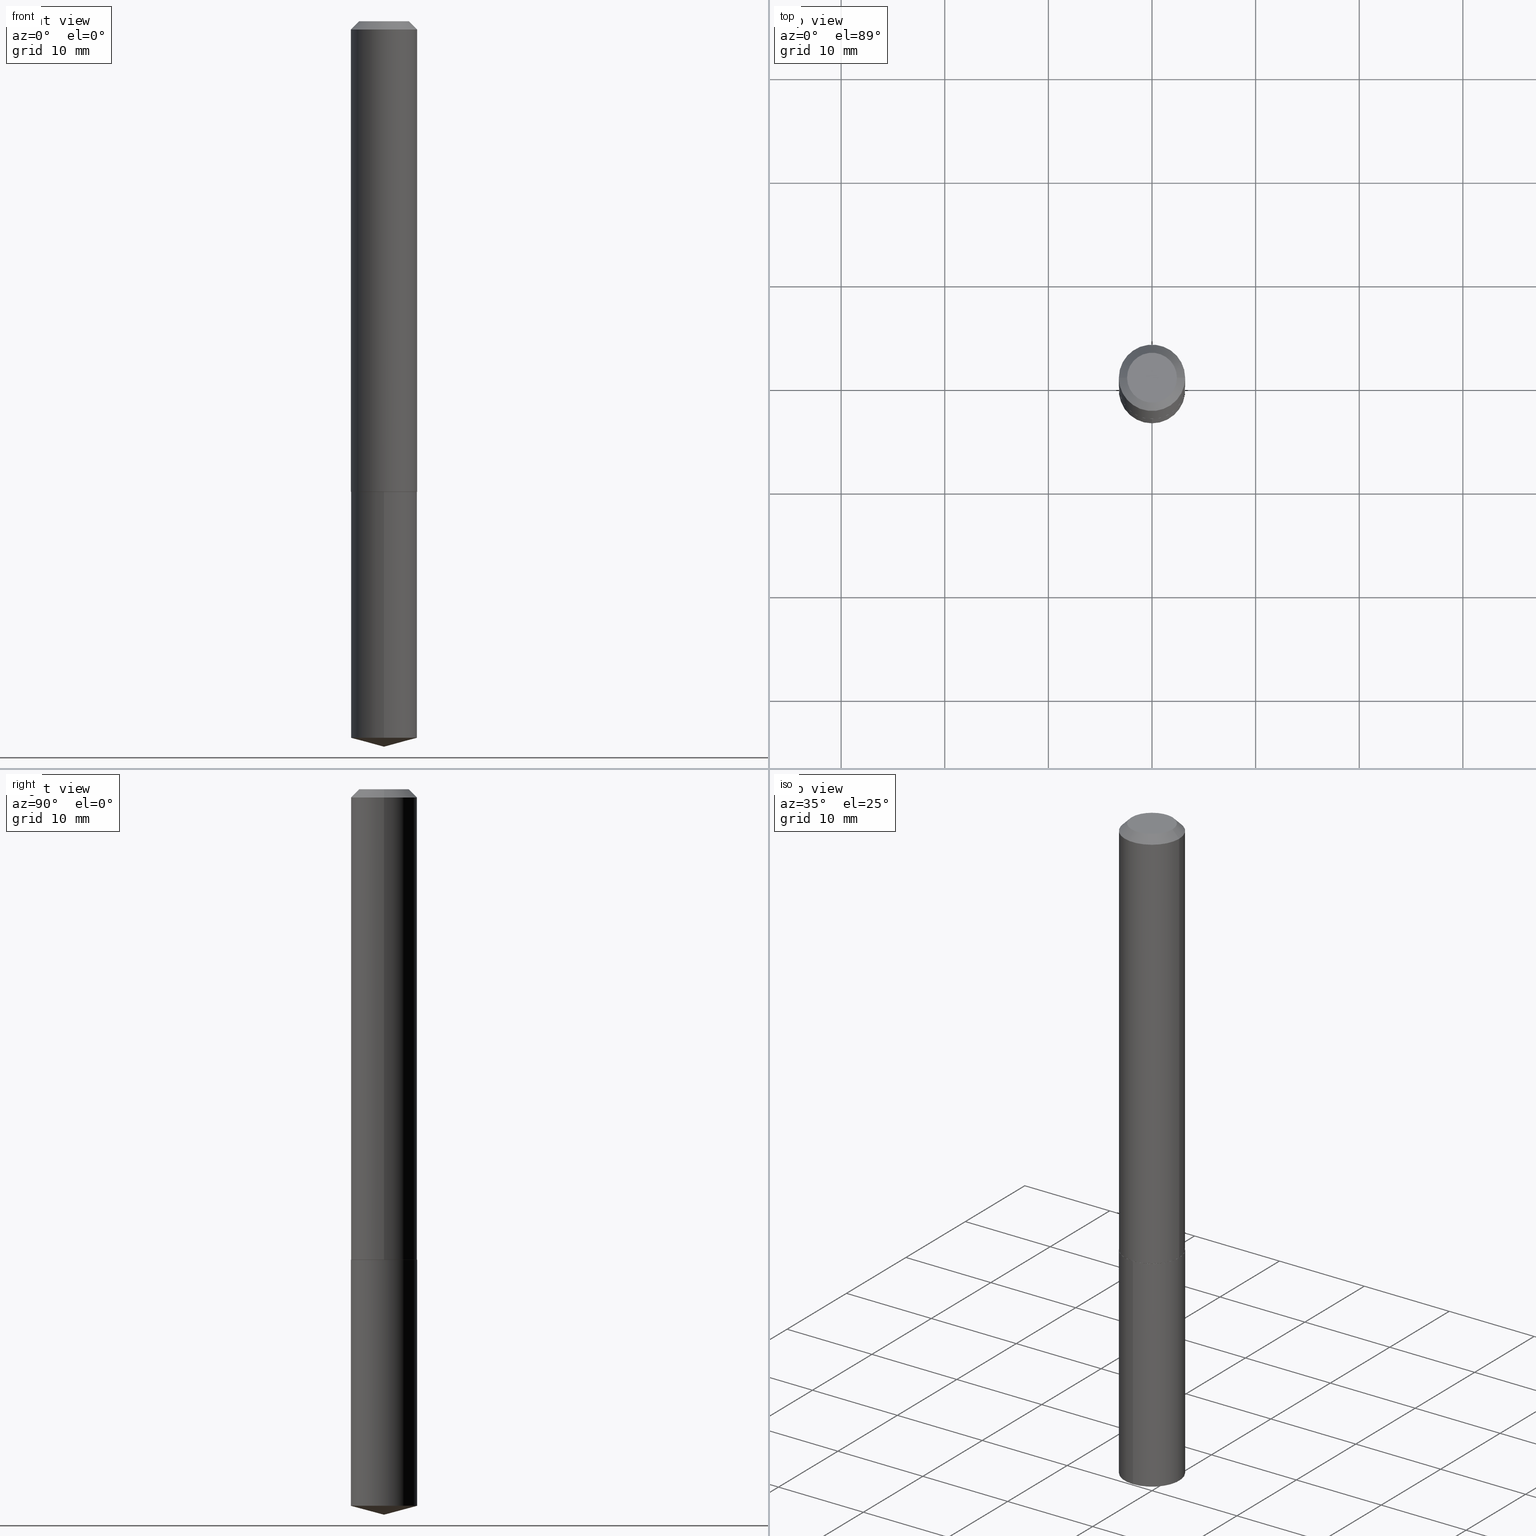
[diagram: canonical four-view strip — front | top / right | iso, engineering-drawing reading convention]
A machine part, canonical four-view strip (front | top / right | iso — engineering-drawing reading convention). The complete STEP part file that produces these views, byte-faithful:
ISO-10303-21;
HEADER;
FILE_DESCRIPTION (( 'STEP AP203' ),
    '1' );
FILE_NAME ('68999.STEP',
    '2024-04-23T14:11:52',
    ( '' ),
    ( '' ),
    'SwSTEP 2.0',
    'SolidWorks 2023',
    '' );
FILE_SCHEMA (( 'CONFIG_CONTROL_DESIGN' ));
ENDSEC;

DATA;
#1 = SECURITY_CLASSIFICATION ( '', '', #189 ) ;
#2 = FACE_OUTER_BOUND ( 'NONE', #12, .T. ) ;
#3 = DIRECTION ( 'NONE',  ( 2.445509556523787719E-29, -3.491422982038831617E-15, -1.000000000000000000 ) ) ;
#4 = CIRCLE ( 'NONE', #182, 0.1255000000000000560 ) ;
#5 = ORIENTED_EDGE ( 'NONE', *, *, #118, .F. ) ;
#6 = DIRECTION ( 'NONE',  ( -2.445468806185136597E-29, 3.491481338843145583E-15, 1.000000000000000000 ) ) ;
#7 = ORIENTED_EDGE ( 'NONE', *, *, #27, .T. ) ;
#8 = FACE_OUTER_BOUND ( 'NONE', #364, .T. ) ;
#9 = EDGE_LOOP ( 'NONE', ( #216, #271, #371, #341 ) ) ;
#10 = ADVANCED_FACE ( 'NONE', ( #75 ), #234, .T. ) ;
#11 = AXIS2_PLACEMENT_3D ( 'NONE', #91, #3, #60 ) ;
#12 = EDGE_LOOP ( 'NONE', ( #63, #339, #244 ) ) ;
#13 = PRODUCT_DEFINITION_FORMATION_WITH_SPECIFIED_SOURCE ( 'ANY', '', #270, .NOT_KNOWN. ) ;
#14 = DIRECTION ( 'NONE',  ( -6.982962677686266711E-15, -1.000000000000000000, 3.510303681827621500E-15 ) ) ;
#15 = VERTEX_POINT ( 'NONE', #126 ) ;
#16 = EDGE_LOOP ( 'NONE', ( #7, #333 ) ) ;
#17 = AXIS2_PLACEMENT_3D ( 'NONE', #45, #228, #263 ) ;
#18 = DIRECTION ( 'NONE',  ( -0.7071067811865452413, 2.468850131082233000E-15, -0.7071067811865497932 ) ) ;
#19 = SHAPE_DEFINITION_REPRESENTATION ( #334, #82 ) ;
#20 = ORIENTED_EDGE ( 'NONE', *, *, #297, .F. ) ;
#21 = CARTESIAN_POINT ( 'NONE',  ( 0.1260000000000001119, -8.798532973884703392E-16, 6.143982737502884452E-30 ) ) ;
#22 = AXIS2_PLACEMENT_3D ( 'NONE', #199, #195, #235 ) ;
#23 = DIRECTION ( 'NONE',  ( -1.000000000000000000, 6.982962677686265922E-15, -4.876176775795935793E-29 ) ) ;
#24 =( NAMED_UNIT ( * ) SI_UNIT ( $, .STERADIAN. ) SOLID_ANGLE_UNIT ( ) );
#25 = CARTESIAN_POINT ( 'NONE',  ( 4.371030944175312434E-29, -6.240673745048237082E-15, -1.787399999999999656 ) ) ;
#26 = VECTOR ( 'NONE', #259, 39.37007874015748143 ) ;
#27 = EDGE_CURVE ( 'NONE', #154, #366, #30, .T. ) ;
#28 = CC_DESIGN_PERSON_AND_ORGANIZATION_ASSIGNMENT ( #157, #160, ( #1 ) ) ;
#29 = EDGE_CURVE ( 'NONE', #95, #131, #353, .T. ) ;
#30 = CIRCLE ( 'NONE', #127, 0.09474999999999998701 ) ;
#31 = AXIS2_PLACEMENT_3D ( 'NONE', #139, #237, #264 ) ;
#32 = CARTESIAN_POINT ( 'NONE',  ( 0.000000000000000000, 0.000000000000000000, 0.000000000000000000 ) ) ;
#33 = ORIENTED_EDGE ( 'NONE', *, *, #183, .F. ) ;
#34 = CARTESIAN_POINT ( 'NONE',  ( 7.087934856449924707E-29, -2.349912706103619033E-15, -1.787399999999999878 ) ) ;
#35 = ORIENTED_EDGE ( 'NONE', *, *, #383, .F. ) ;
#36 = ORIENTED_EDGE ( 'NONE', *, *, #346, .T. ) ;
#37 = APPROVAL_PERSON_ORGANIZATION ( #311, #135, #224 ) ;
#38 = EDGE_CURVE ( 'NONE', #121, #368, #390, .T. ) ;
#39 = MANIFOLD_SOLID_BREP ( 'Body-Move/Copy2[2]', #376 ) ;
#40 = APPROVAL_STATUS ( 'not_yet_approved' ) ;
#41 = FACE_OUTER_BOUND ( 'NONE', #93, .T. ) ;
#42 = CALENDAR_DATE ( 2024, 23, 4 ) ;
#43 = DIRECTION ( 'NONE',  ( 1.000000000000000000, 0.000000000000000000, 0.000000000000000000 ) ) ;
#44 = ORIENTED_EDGE ( 'NONE', *, *, #243, .F. ) ;
#45 = CARTESIAN_POINT ( 'NONE',  ( 7.642090019328603538E-31, -1.091087918388490390E-16, -0.03125000000000021511 ) ) ;
#46 = CC_DESIGN_SECURITY_CLASSIFICATION ( #1, ( #13 ) ) ;
#47 = CARTESIAN_POINT ( 'NONE',  ( -0.1260000000000001952, -5.343644157321089338E-15, -1.786900000000000377 ) ) ;
#48 = DATE_TIME_ROLE ( 'creation_date' ) ;
#49 = CC_DESIGN_PERSON_AND_ORGANIZATION_ASSIGNMENT ( #379, #74, ( #13 ) ) ;
#50 = CARTESIAN_POINT ( 'NONE',  ( 7.642090019328603538E-31, -1.091087918388490390E-16, -0.03125000000000021511 ) ) ;
#51 = DIRECTION ( 'NONE',  ( -6.745023994389839133E-15, -0.9659258262890676461, 0.2588190451025227934 ) ) ;
#52 = FACE_OUTER_BOUND ( 'NONE', #208, .T. ) ;
#53 = VECTOR ( 'NONE', #51, 39.37007874015748854 ) ;
#54 = APPROVAL ( #40, 'UNSPECIFIED' ) ;
#55 = ADVANCED_FACE ( 'NONE', ( #229 ), #162, .T. ) ;
#56 = LOCAL_TIME ( 10, 11, 52.00000000000000000, #138 ) ;
#57 = CARTESIAN_POINT ( 'NONE',  ( -8.798532973884258671E-16, -0.1260000000000062459, -1.787399999999999656 ) ) ;
#58 = LENGTH_MEASURE_WITH_UNIT ( LENGTH_MEASURE( 0.02539999999999999897 ), #136 );
#59 = CIRCLE ( 'NONE', #17, 0.1260000000000000009 ) ;
#60 = DIRECTION ( 'NONE',  ( 6.982962677686265922E-15, 1.000000000000000000, -3.491422982038831617E-15 ) ) ;
#61 = ORIENTED_EDGE ( 'NONE', *, *, #77, .F. ) ;
#62 = DESIGN_CONTEXT ( 'detailed design', #255, 'design' ) ;
#63 = ORIENTED_EDGE ( 'NONE', *, *, #94, .F. ) ;
#64 = PERSON_AND_ORGANIZATION ( #272, #178 ) ;
#65 = ORIENTED_EDGE ( 'NONE', *, *, #27, .F. ) ;
#66 = CARTESIAN_POINT ( 'NONE',  ( 4.369808209772221314E-29, -6.238928004378817156E-15, -1.786900000000000377 ) ) ;
#67 = VERTEX_POINT ( 'NONE', #378 ) ;
#68 = CARTESIAN_POINT ( 'NONE',  ( -8.798532973884258671E-16, -0.1260000000000062459, -1.787399999999999656 ) ) ;
#69 = ORIENTED_EDGE ( 'NONE', *, *, #100, .F. ) ;
#70 = CALENDAR_DATE ( 2024, 23, 4 ) ;
#71 = DIRECTION ( 'NONE',  ( -6.982962677686265922E-15, -1.000000000000000000, 4.336266656609941617E-15 ) ) ;
#72 = ADVANCED_FACE ( 'NONE', ( #41 ), #352, .T. ) ;
#73 = DIRECTION ( 'NONE',  ( -2.445468806185136597E-29, 3.491481338843145583E-15, 1.000000000000000000 ) ) ;
#74 = PERSON_AND_ORGANIZATION_ROLE ( 'design_supplier' ) ;
#75 = FACE_OUTER_BOUND ( 'NONE', #123, .T. ) ;
#76 = CARTESIAN_POINT ( 'NONE',  ( 0.000000000000000000, 0.000000000000000000, 0.000000000000000000 ) ) ;
#77 = EDGE_CURVE ( 'NONE', #95, #365, #4, .T. ) ;
#78 = CARTESIAN_POINT ( 'NONE',  ( 0.1260000000000001952, -7.118781301767288876E-15, -1.786900000000000377 ) ) ;
#79 = CONICAL_SURFACE ( 'NONE', #367, 146.9311341562558084, 1.308996938995748538 ) ;
#80 = AXIS2_PLACEMENT_3D ( 'NONE', #76, #319, #192 ) ;
#81 = CARTESIAN_POINT ( 'NONE',  ( -2.994835545909349753E-48, 4.275831445897006817E-34, 1.224646799147362773E-19 ) ) ;
#82 = ADVANCED_BREP_SHAPE_REPRESENTATION ( '68999', ( #163, #39, #104 ), #90 ) ;
#83 = LINE ( 'NONE', #347, #161 ) ;
#84 = DIRECTION ( 'NONE',  ( -2.445468806185136877E-29, 3.491481338843145188E-15, 1.000000000000000000 ) ) ;
#85 = AXIS2_PLACEMENT_3D ( 'NONE', #268, #209, #372 ) ;
#86 = DIRECTION ( 'NONE',  ( -2.445509556523788279E-29, 3.491422982038831222E-15, 1.000000000000000000 ) ) ;
#87 = DIRECTION ( 'NONE',  ( -1.000000000000000000, 6.982962677686265922E-15, 0.000000000000000000 ) ) ;
#88 = EDGE_CURVE ( 'NONE', #144, #357, #300, .T. ) ;
#89 = CIRCLE ( 'NONE', #325, 0.1260000000000000009 ) ;
#90 =( GEOMETRIC_REPRESENTATION_CONTEXT ( 3 ) GLOBAL_UNCERTAINTY_ASSIGNED_CONTEXT ( ( #313 ) ) GLOBAL_UNIT_ASSIGNED_CONTEXT ( ( #172, #200, #24 ) ) REPRESENTATION_CONTEXT ( 'NONE', 'WORKASPACE' ) );
#91 = CARTESIAN_POINT ( 'NONE',  ( 4.371030944175314115E-29, -6.240673745048238660E-15, -1.787400000000000100 ) ) ;
#92 = EDGE_CURVE ( 'NONE', #154, #67, #83, .T. ) ;
#93 = EDGE_LOOP ( 'NONE', ( #35, #385, #101, #69 ) ) ;
#94 = EDGE_CURVE ( 'NONE', #121, #213, #320, .T. ) ;
#95 = VERTEX_POINT ( 'NONE', #316 ) ;
#96 = AXIS2_PLACEMENT_3D ( 'NONE', #167, #261, #87 ) ;
#97 = DIRECTION ( 'NONE',  ( -6.982962677686265922E-15, -1.000000000000000000, 4.336266656609941617E-15 ) ) ;
#98 = ORIENTED_EDGE ( 'NONE', *, *, #230, .F. ) ;
#99 = CALENDAR_DATE ( 2024, 23, 4 ) ;
#100 = EDGE_CURVE ( 'NONE', #67, #108, #59, .T. ) ;
#101 = ORIENTED_EDGE ( 'NONE', *, *, #118, .T. ) ;
#102 = LINE ( 'NONE', #47, #231 ) ;
#103 = COORDINATED_UNIVERSAL_TIME_OFFSET ( 5, 0, .BEHIND. ) ;
#104 = AXIS2_PLACEMENT_3D ( 'NONE', #370, #219, #43 ) ;
#105 = PERSON_AND_ORGANIZATION ( #272, #178 ) ;
#106 = DIRECTION ( 'NONE',  ( -2.445468806185136597E-29, 3.491481338843145583E-15, 1.000000000000000000 ) ) ;
#107 = CARTESIAN_POINT ( 'NONE',  ( 8.952838470577930965E-16, 0.1259999999999937559, -1.787400000000000766 ) ) ;
#108 = VERTEX_POINT ( 'NONE', #165 ) ;
#109 = DIRECTION ( 'NONE',  ( -2.445468806185136597E-29, 3.491481338843145583E-15, 1.000000000000000000 ) ) ;
#110 = CARTESIAN_POINT ( 'NONE',  ( 4.369808209772221314E-29, -6.238928004378817156E-15, -1.786900000000000377 ) ) ;
#111 = EDGE_LOOP ( 'NONE', ( #184, #148, #286, #119 ) ) ;
#112 = DIRECTION ( 'NONE',  ( -2.445509556523788279E-29, 3.491422982038831222E-15, 1.000000000000000000 ) ) ;
#113 = DIRECTION ( 'NONE',  ( -2.445468806185136597E-29, 3.491481338843145583E-15, 1.000000000000000000 ) ) ;
#114 = AXIS2_PLACEMENT_3D ( 'NONE', #34, #212, #142 ) ;
#115 = CARTESIAN_POINT ( 'NONE',  ( -8.954039685048053852E-28, 1.278354808149113839E-13, 36.61417874015747742 ) ) ;
#116 = CC_DESIGN_PERSON_AND_ORGANIZATION_ASSIGNMENT ( #125, #251, ( #145 ) ) ;
#117 = AXIS2_PLACEMENT_3D ( 'NONE', #343, #156, #14 ) ;
#118 = EDGE_CURVE ( 'NONE', #131, #108, #159, .T. ) ;
#119 = ORIENTED_EDGE ( 'NONE', *, *, #92, .F. ) ;
#120 = ORIENTED_EDGE ( 'NONE', *, *, #94, .T. ) ;
#121 = VERTEX_POINT ( 'NONE', #203 ) ;
#122 = PERSON_AND_ORGANIZATION ( #272, #178 ) ;
#123 = EDGE_LOOP ( 'NONE', ( #20, #331, #306, #351 ) ) ;
#124 = CARTESIAN_POINT ( 'NONE',  ( 6.739581064215659459E-29, -9.622012596200812609E-15, -2.755900000000000016 ) ) ;
#125 = PERSON_AND_ORGANIZATION ( #272, #178 ) ;
#126 = CARTESIAN_POINT ( 'NONE',  ( -0.1260000000000001952, -5.343644157321089338E-15, -1.786900000000000377 ) ) ;
#127 = AXIS2_PLACEMENT_3D ( 'NONE', #345, #106, #227 ) ;
#128 = EDGE_CURVE ( 'NONE', #213, #368, #89, .T. ) ;
#129 = AXIS2_PLACEMENT_3D ( 'NONE', #249, #369, #217 ) ;
#130 = MECHANICAL_CONTEXT ( 'NONE', #324, 'mechanical' ) ;
#131 = VERTEX_POINT ( 'NONE', #170 ) ;
#132 = LOCAL_TIME ( 10, 11, 52.00000000000000000, #373 ) ;
#133 = FACE_OUTER_BOUND ( 'NONE', #381, .T. ) ;
#134 = APPROVAL_DATE_TIME ( #279, #135 ) ;
#135 = APPROVAL ( #335, 'UNSPECIFIED' ) ;
#136 =( LENGTH_UNIT ( ) NAMED_UNIT ( * ) SI_UNIT ( $, .METRE. ) );
#137 = AXIS2_PLACEMENT_3D ( 'NONE', #25, #293, #387 ) ;
#138 = COORDINATED_UNIVERSAL_TIME_OFFSET ( 5, 0, .BEHIND. ) ;
#139 = CARTESIAN_POINT ( 'NONE',  ( 4.369808209772221314E-29, -6.238928004378817156E-15, -1.786900000000000377 ) ) ;
#140 = VECTOR ( 'NONE', #204, 39.37007874015748143 ) ;
#141 = CC_DESIGN_APPROVAL ( #135, ( #13 ) ) ;
#142 = DIRECTION ( 'NONE',  ( 1.000000000000000000, -6.982962677686265922E-15, 4.876176775795935793E-29 ) ) ;
#143 = VECTOR ( 'NONE', #327, 39.37007874015748143 ) ;
#144 = VERTEX_POINT ( 'NONE', #107 ) ;
#145 = PRODUCT_DEFINITION ( 'UNKNOWN', '', #13, #62 ) ;
#146 = DIRECTION ( 'NONE',  ( -2.445509556523788279E-29, 3.491422982038831617E-15, 1.000000000000000000 ) ) ;
#147 = FACE_OUTER_BOUND ( 'NONE', #111, .T. ) ;
#148 = ORIENTED_EDGE ( 'NONE', *, *, #230, .T. ) ;
#149 = PRODUCT_RELATED_PRODUCT_CATEGORY ( 'detail', '', ( #270 ) ) ;
#150 = CIRCLE ( 'NONE', #137, 0.1255000000000000560 ) ;
#151 = CARTESIAN_POINT ( 'NONE',  ( -0.1255000000000000560, -5.346293384495200539E-15, -1.787399999999999656 ) ) ;
#152 = CALENDAR_DATE ( 2024, 23, 4 ) ;
#153 = DATE_AND_TIME ( #42, #56 ) ;
#154 = VERTEX_POINT ( 'NONE', #355 ) ;
#155 = EDGE_CURVE ( 'NONE', #213, #357, #173, .T. ) ;
#156 = DIRECTION ( 'NONE',  ( -2.445509556523788279E-29, 3.491422982038831222E-15, 1.000000000000000000 ) ) ;
#157 = PERSON_AND_ORGANIZATION ( #272, #178 ) ;
#158 = EDGE_LOOP ( 'NONE', ( #61, #44 ) ) ;
#159 = LINE ( 'NONE', #21, #269 ) ;
#160 = PERSON_AND_ORGANIZATION_ROLE ( 'classification_officer' ) ;
#161 = VECTOR ( 'NONE', #18, 39.37007874015748143 ) ;
#162 = CYLINDRICAL_SURFACE ( 'NONE', #238, 0.1260000000000000009 ) ;
#163 = MANIFOLD_SOLID_BREP ( 'Body-Move/Copy2[1]', #181 ) ;
#164 = DIRECTION ( 'NONE',  ( -2.445468806185136597E-29, 3.491481338843145583E-15, 1.000000000000000000 ) ) ;
#165 = CARTESIAN_POINT ( 'NONE',  ( 0.1260000000000000009, -9.889620892273186510E-16, -0.03125000000000021511 ) ) ;
#166 = ADVANCED_FACE ( 'NONE', ( #265 ), #287, .F. ) ;
#167 = CARTESIAN_POINT ( 'NONE',  ( 7.642090019328603538E-31, -1.091087918388490390E-16, -0.03125000000000021511 ) ) ;
#168 = VECTOR ( 'NONE', #146, 39.37007874015748143 ) ;
#169 = LOCAL_TIME ( 10, 11, 52.00000000000000000, #314 ) ;
#170 = CARTESIAN_POINT ( 'NONE',  ( 0.1260000000000001952, -7.118781301767288876E-15, -1.786900000000000377 ) ) ;
#171 = DIMENSIONAL_EXPONENTS ( 1.000000000000000000, 0.000000000000000000, 0.000000000000000000, 0.000000000000000000, 0.000000000000000000, 0.000000000000000000, 0.000000000000000000 ) ;
#172 =( CONVERSION_BASED_UNIT ( 'INCH', #58 ) LENGTH_UNIT ( ) NAMED_UNIT ( #171 ) );
#173 = LINE ( 'NONE', #57, #143 ) ;
#174 = DIRECTION ( 'NONE',  ( -6.982962677686265922E-15, -1.000000000000000000, 4.336266656609941617E-15 ) ) ;
#175 = EDGE_CURVE ( 'NONE', #108, #67, #308, .T. ) ;
#176 = FACE_OUTER_BOUND ( 'NONE', #186, .T. ) ;
#177 = CIRCLE ( 'NONE', #222, 0.1260000000000000009 ) ;
#178 = ORGANIZATION ( 'UNSPECIFIED', 'UNSPECIFIED', '' ) ;
#179 = DIRECTION ( 'NONE',  ( 1.000000000000000000, -6.982962677686266711E-15, 4.876176775795935793E-29 ) ) ;
#180 = ORIENTED_EDGE ( 'NONE', *, *, #328, .F. ) ;
#181 = CLOSED_SHELL ( 'NONE', ( #55, #274, #348, #10, #296 ) ) ;
#182 = AXIS2_PLACEMENT_3D ( 'NONE', #382, #109, #356 ) ;
#183 = EDGE_CURVE ( 'NONE', #357, #144, #354, .T. ) ;
#184 = ORIENTED_EDGE ( 'NONE', *, *, #375, .F. ) ;
#185 = LINE ( 'NONE', #241, #168 ) ;
#186 = EDGE_LOOP ( 'NONE', ( #250, #242 ) ) ;
#187 = APPROVAL_STATUS ( 'not_yet_approved' ) ;
#188 = APPROVAL_PERSON_ORGANIZATION ( #318, #54, #278 ) ;
#189 = SECURITY_CLASSIFICATION_LEVEL ( 'unclassified' ) ;
#190 = ORIENTED_EDGE ( 'NONE', *, *, #267, .T. ) ;
#191 = CC_DESIGN_DATE_AND_TIME_ASSIGNMENT ( #153, #48, ( #145 ) ) ;
#192 = DIRECTION ( 'NONE',  ( 1.000000000000000000, -6.982962677686266711E-15, 4.876176775795935793E-29 ) ) ;
#193 = CARTESIAN_POINT ( 'NONE',  ( 0.09474999999999998701, -8.117818624234574270E-16, 2.449293598346239839E-19 ) ) ;
#194 = APPROVAL_DATE_TIME ( #225, #226 ) ;
#195 = DIRECTION ( 'NONE',  ( -2.445509556523788279E-29, 3.491422982038831222E-15, 1.000000000000000000 ) ) ;
#196 = CONICAL_SURFACE ( 'NONE', #85, 0.1260000000000000009, 0.7853981633974450594 ) ;
#197 = DIRECTION ( 'NONE',  ( -6.982962677686265922E-15, -1.000000000000000000, 4.336266656609941617E-15 ) ) ;
#198 = CC_DESIGN_PERSON_AND_ORGANIZATION_ASSIGNMENT ( #105, #340, ( #13 ) ) ;
#199 = CARTESIAN_POINT ( 'NONE',  ( 4.371030944175314115E-29, -6.240673745048238660E-15, -1.787400000000000100 ) ) ;
#200 =( NAMED_UNIT ( * ) PLANE_ANGLE_UNIT ( ) SI_UNIT ( $, .RADIAN. ) );
#201 = DIRECTION ( 'NONE',  ( 1.000000000000000000, -6.982962677686268288E-15, 0.000000000000000000 ) ) ;
#202 = CARTESIAN_POINT ( 'NONE',  ( 4.371030944175314115E-29, -6.240673745048238660E-15, -1.787400000000000100 ) ) ;
#203 = CARTESIAN_POINT ( 'NONE',  ( 6.739579786823907686E-29, -9.622012596200815764E-15, -2.755900000000000016 ) ) ;
#204 = DIRECTION ( 'NONE',  ( -2.445468806185136877E-29, 3.491481338843145188E-15, 1.000000000000000000 ) ) ;
#205 = CONICAL_SURFACE ( 'NONE', #253, 0.1260000000000001952, 0.7853981633982337618 ) ;
#206 = CARTESIAN_POINT ( 'NONE',  ( 0.1260000000000000009, -9.735315395580621580E-16, -0.03125000000000021511 ) ) ;
#207 = CIRCLE ( 'NONE', #275, 0.1260000000000001952 ) ;
#208 = EDGE_LOOP ( 'NONE', ( #98, #65, #299, #273 ) ) ;
#209 = DIRECTION ( 'NONE',  ( 2.445468806185136597E-29, -3.491481338843145583E-15, -1.000000000000000000 ) ) ;
#210 = ORIENTED_EDGE ( 'NONE', *, *, #297, .T. ) ;
#211 = CONICAL_SURFACE ( 'NONE', #96, 0.1260000000000000009, 0.7853981633974450594 ) ;
#212 = DIRECTION ( 'NONE',  ( -2.438088387897960049E-29, 3.491481338843145188E-15, 1.000000000000000000 ) ) ;
#213 = VERTEX_POINT ( 'NONE', #384 ) ;
#214 = DATE_TIME_ROLE ( 'classification_date' ) ;
#215 = APPLICATION_PROTOCOL_DEFINITION ( 'international standard', 'config_control_design', 1994, #324 ) ;
#216 = ORIENTED_EDGE ( 'NONE', *, *, #346, .F. ) ;
#217 = DIRECTION ( 'NONE',  ( 1.000000000000000000, -6.982962677686266711E-15, 4.876169288824004424E-29 ) ) ;
#218 = EDGE_CURVE ( 'NONE', #15, #131, #207, .T. ) ;
#219 = DIRECTION ( 'NONE',  ( 0.000000000000000000, 0.000000000000000000, 1.000000000000000000 ) ) ;
#220 = EDGE_LOOP ( 'NONE', ( #248, #36, #303, #285 ) ) ;
#221 = ADVANCED_FACE ( 'NONE', ( #52 ), #211, .T. ) ;
#222 = AXIS2_PLACEMENT_3D ( 'NONE', #245, #338, #97 ) ;
#223 = DIRECTION ( 'NONE',  ( -0.7071067811871027953, 7.493145998872359445E-15, 0.7071067811859920171 ) ) ;
#224 = APPROVAL_ROLE ( '' ) ;
#225 = DATE_AND_TIME ( #152, #276 ) ;
#226 = APPROVAL ( #187, 'UNSPECIFIED' ) ;
#227 = DIRECTION ( 'NONE',  ( 1.000000000000000000, -6.982962677686266711E-15, 4.876169288824004424E-29 ) ) ;
#228 = DIRECTION ( 'NONE',  ( -2.445468806185136597E-29, 3.491481338843145583E-15, 1.000000000000000000 ) ) ;
#229 = FACE_OUTER_BOUND ( 'NONE', #312, .T. ) ;
#230 = EDGE_CURVE ( 'NONE', #366, #108, #291, .T. ) ;
#231 = VECTOR ( 'NONE', #223, 39.37007874015748854 ) ;
#232 = ORIENTED_EDGE ( 'NONE', *, *, #155, .F. ) ;
#233 = DIRECTION ( 'NONE',  ( -2.445468806185136597E-29, 3.491481338843145583E-15, 1.000000000000000000 ) ) ;
#234 = CYLINDRICAL_SURFACE ( 'NONE', #252, 0.1260000000000000009 ) ;
#235 = DIRECTION ( 'NONE',  ( -6.982962677686265922E-15, -1.000000000000000000, 4.336266656609941617E-15 ) ) ;
#236 = FACE_OUTER_BOUND ( 'NONE', #220, .T. ) ;
#237 = DIRECTION ( 'NONE',  ( -2.445468806185136597E-29, 3.491481338843145583E-15, 1.000000000000000000 ) ) ;
#238 = AXIS2_PLACEMENT_3D ( 'NONE', #388, #112, #197 ) ;
#239 = DIRECTION ( 'NONE',  ( -6.982962677686266711E-15, -1.000000000000000000, 3.510303681827621500E-15 ) ) ;
#240 = AXIS2_PLACEMENT_3D ( 'NONE', #81, #290, #23 ) ;
#241 = CARTESIAN_POINT ( 'NONE',  ( 8.952838470577698251E-16, 0.1259999999999937559, -1.787400000000000766 ) ) ;
#242 = ORIENTED_EDGE ( 'NONE', *, *, #88, .T. ) ;
#243 = EDGE_CURVE ( 'NONE', #365, #95, #150, .T. ) ;
#244 = ORIENTED_EDGE ( 'NONE', *, *, #128, .F. ) ;
#245 = CARTESIAN_POINT ( 'NONE',  ( 6.656942638513705697E-29, -9.504240883125278205E-15, -2.722138401753678494 ) ) ;
#246 = ORIENTED_EDGE ( 'NONE', *, *, #128, .T. ) ;
#247 = AXIS2_PLACEMENT_3D ( 'NONE', #326, #329, #174 ) ;
#248 = ORIENTED_EDGE ( 'NONE', *, *, #77, .T. ) ;
#249 = CARTESIAN_POINT ( 'NONE',  ( -5.989671091818699506E-48, 8.551662891794013634E-34, 2.449293598294725547E-19 ) ) ;
#250 = ORIENTED_EDGE ( 'NONE', *, *, #183, .T. ) ;
#251 = PERSON_AND_ORGANIZATION_ROLE ( 'creator' ) ;
#252 = AXIS2_PLACEMENT_3D ( 'NONE', #202, #322, #380 ) ;
#253 = AXIS2_PLACEMENT_3D ( 'NONE', #66, #73, #304 ) ;
#254 = LOCAL_TIME ( 10, 11, 52.00000000000000000, #344 ) ;
#255 = APPLICATION_CONTEXT ( 'configuration controlled 3d designs of mechanical parts and assemblies' ) ;
#256 = APPLICATION_PROTOCOL_DEFINITION ( 'international standard', 'config_control_design', 1994, #255 ) ;
#257 = CC_DESIGN_DATE_AND_TIME_ASSIGNMENT ( #350, #214, ( #1 ) ) ;
#258 = ADVANCED_FACE ( 'NONE', ( #236 ), #317, .T. ) ;
#259 = DIRECTION ( 'NONE',  ( 6.863315791527694259E-15, 0.9659258262890694224, 0.2588190451025160765 ) ) ;
#260 = CARTESIAN_POINT ( 'NONE',  ( 6.739434112513297023E-29, -9.622221210104877647E-15, -2.755900000000000016 ) ) ;
#261 = DIRECTION ( 'NONE',  ( 2.445468806185136597E-29, -3.491481338843145583E-15, -1.000000000000000000 ) ) ;
#262 = DIRECTION ( 'NONE',  ( 0.7071067811871027953, -2.468850131088074121E-15, 0.7071067811859920171 ) ) ;
#263 = DIRECTION ( 'NONE',  ( 1.000000000000000000, -6.982962677686265922E-15, 0.000000000000000000 ) ) ;
#264 = DIRECTION ( 'NONE',  ( 1.000000000000000000, -6.982962677686268288E-15, 0.000000000000000000 ) ) ;
#265 = FACE_OUTER_BOUND ( 'NONE', #16, .T. ) ;
#266 = PLANE ( 'NONE',  #11 ) ;
#267 = EDGE_CURVE ( 'NONE', #131, #15, #283, .T. ) ;
#268 = CARTESIAN_POINT ( 'NONE',  ( 7.642090019328603538E-31, -1.091087918388490390E-16, -0.03125000000000021511 ) ) ;
#269 = VECTOR ( 'NONE', #84, 39.37007874015748143 ) ;
#270 = PRODUCT ( '68999', '68999', '', ( #130 ) ) ;
#271 = ORIENTED_EDGE ( 'NONE', *, *, #243, .T. ) ;
#272 = PERSON ( 'UNSPECIFIED', 'UNSPECIFIED', 'UNSPECIFIED', ('UNSPECIFIED'), ('UNSPECIFIED'), ('UNSPECIFIED') ) ;
#273 = ORIENTED_EDGE ( 'NONE', *, *, #100, .T. ) ;
#274 = ADVANCED_FACE ( 'NONE', ( #2 ), #79, .T. ) ;
#275 = AXIS2_PLACEMENT_3D ( 'NONE', #110, #233, #201 ) ;
#276 = LOCAL_TIME ( 10, 11, 52.00000000000000000, #103 ) ;
#277 = CARTESIAN_POINT ( 'NONE',  ( 8.952838470577932937E-16, 0.1259999999999905362, -2.722138401753679382 ) ) ;
#278 = APPROVAL_ROLE ( '' ) ;
#279 = DATE_AND_TIME ( #99, #169 ) ;
#280 = DATE_AND_TIME ( #70, #254 ) ;
#281 = ORIENTED_EDGE ( 'NONE', *, *, #383, .T. ) ;
#282 = DIRECTION ( 'NONE',  ( -2.445509556523788279E-29, 3.491422982038831222E-15, 1.000000000000000000 ) ) ;
#283 = CIRCLE ( 'NONE', #295, 0.1260000000000001952 ) ;
#284 = CALENDAR_DATE ( 2024, 23, 4 ) ;
#285 = ORIENTED_EDGE ( 'NONE', *, *, #29, .F. ) ;
#286 = ORIENTED_EDGE ( 'NONE', *, *, #175, .T. ) ;
#287 = PLANE ( 'NONE',  #240 ) ;
#288 = ADVANCED_FACE ( 'NONE', ( #362 ), #302, .F. ) ;
#289 = CONICAL_SURFACE ( 'NONE', #117, 146.9311341562558084, 1.308996938995748538 ) ;
#290 = DIRECTION ( 'NONE',  ( 2.438088387897960049E-29, -3.491481338843145188E-15, -1.000000000000000000 ) ) ;
#291 = LINE ( 'NONE', #206, #377 ) ;
#292 = CC_DESIGN_PERSON_AND_ORGANIZATION_ASSIGNMENT ( #64, #374, ( #270 ) ) ;
#293 = DIRECTION ( 'NONE',  ( -2.445468806185136597E-29, 3.491481338843145583E-15, 1.000000000000000000 ) ) ;
#294 = AXIS2_PLACEMENT_3D ( 'NONE', #50, #164, #321 ) ;
#295 = AXIS2_PLACEMENT_3D ( 'NONE', #389, #113, #361 ) ;
#296 = ADVANCED_FACE ( 'NONE', ( #176 ), #266, .F. ) ;
#297 = EDGE_CURVE ( 'NONE', #368, #144, #185, .T. ) ;
#298 = CYLINDRICAL_SURFACE ( 'NONE', #330, 0.1260000000000001119 ) ;
#299 = ORIENTED_EDGE ( 'NONE', *, *, #92, .T. ) ;
#300 = CIRCLE ( 'NONE', #22, 0.1260000000000000009 ) ;
#301 = CC_DESIGN_APPROVAL ( #226, ( #145 ) ) ;
#302 = PLANE ( 'NONE',  #114 ) ;
#303 = ORIENTED_EDGE ( 'NONE', *, *, #267, .F. ) ;
#304 = DIRECTION ( 'NONE',  ( 1.000000000000000000, -6.982962677686268288E-15, 0.000000000000000000 ) ) ;
#305 = APPROVAL_DATE_TIME ( #280, #54 ) ;
#306 = ORIENTED_EDGE ( 'NONE', *, *, #155, .T. ) ;
#307 = ADVANCED_FACE ( 'NONE', ( #8 ), #298, .T. ) ;
#308 = CIRCLE ( 'NONE', #294, 0.1260000000000000009 ) ;
#309 = CC_DESIGN_APPROVAL ( #54, ( #1 ) ) ;
#310 = LINE ( 'NONE', #386, #140 ) ;
#311 = PERSON_AND_ORGANIZATION ( #272, #178 ) ;
#312 = EDGE_LOOP ( 'NONE', ( #246, #210, #33, #232 ) ) ;
#313 = UNCERTAINTY_MEASURE_WITH_UNIT (LENGTH_MEASURE( 1.000000000000000082E-05 ), #172, 'distance_accuracy_value', 'NONE');
#314 = COORDINATED_UNIVERSAL_TIME_OFFSET ( 5, 0, .BEHIND. ) ;
#315 = ORIENTED_EDGE ( 'NONE', *, *, #38, .F. ) ;
#316 = CARTESIAN_POINT ( 'NONE',  ( 0.1255000000000000560, -7.117035561097863428E-15, -1.787399999999999656 ) ) ;
#317 = CONICAL_SURFACE ( 'NONE', #31, 0.1260000000000001952, 0.7853981633982337618 ) ;
#318 = PERSON_AND_ORGANIZATION ( #272, #178 ) ;
#319 = DIRECTION ( 'NONE',  ( -2.445468806185136597E-29, 3.491481338843145583E-15, 1.000000000000000000 ) ) ;
#320 = LINE ( 'NONE', #260, #53 ) ;
#321 = DIRECTION ( 'NONE',  ( 1.000000000000000000, -6.982962677686265922E-15, 0.000000000000000000 ) ) ;
#322 = DIRECTION ( 'NONE',  ( -2.445509556523788279E-29, 3.491422982038831222E-15, 1.000000000000000000 ) ) ;
#323 = CARTESIAN_POINT ( 'NONE',  ( 6.656942638513705697E-29, -9.504240883125278205E-15, -2.722138401753678494 ) ) ;
#324 = APPLICATION_CONTEXT ( 'configuration controlled 3d designs of mechanical parts and assemblies' ) ;
#325 = AXIS2_PLACEMENT_3D ( 'NONE', #323, #282, #71 ) ;
#326 = CARTESIAN_POINT ( 'NONE',  ( 4.371030944175314115E-29, -6.240673745048238660E-15, -1.787400000000000100 ) ) ;
#327 = DIRECTION ( 'NONE',  ( -2.445509556523788279E-29, 3.491422982038831617E-15, 1.000000000000000000 ) ) ;
#328 = EDGE_CURVE ( 'NONE', #368, #213, #177, .T. ) ;
#329 = DIRECTION ( 'NONE',  ( -2.445509556523788279E-29, 3.491422982038831222E-15, 1.000000000000000000 ) ) ;
#330 = AXIS2_PLACEMENT_3D ( 'NONE', #32, #6, #179 ) ;
#331 = ORIENTED_EDGE ( 'NONE', *, *, #328, .T. ) ;
#332 = ORIENTED_EDGE ( 'NONE', *, *, #175, .F. ) ;
#333 = ORIENTED_EDGE ( 'NONE', *, *, #375, .T. ) ;
#334 = PRODUCT_DEFINITION_SHAPE ( 'NONE', 'NONE',  #145 ) ;
#335 = APPROVAL_STATUS ( 'not_yet_approved' ) ;
#336 = ADVANCED_FACE ( 'NONE', ( #147 ), #196, .T. ) ;
#337 = APPROVAL_ROLE ( '' ) ;
#338 = DIRECTION ( 'NONE',  ( -2.445509556523788279E-29, 3.491422982038831222E-15, 1.000000000000000000 ) ) ;
#339 = ORIENTED_EDGE ( 'NONE', *, *, #38, .T. ) ;
#340 = PERSON_AND_ORGANIZATION_ROLE ( 'creator' ) ;
#341 = ORIENTED_EDGE ( 'NONE', *, *, #218, .F. ) ;
#342 = CIRCLE ( 'NONE', #129, 0.09474999999999998701 ) ;
#343 = CARTESIAN_POINT ( 'NONE',  ( -8.954039685048053852E-28, 1.278354808149113839E-13, 36.61417874015747742 ) ) ;
#344 = COORDINATED_UNIVERSAL_TIME_OFFSET ( 5, 0, .BEHIND. ) ;
#345 = CARTESIAN_POINT ( 'NONE',  ( -5.989671091818699506E-48, 8.551662891794013634E-34, 2.449293598294725547E-19 ) ) ;
#346 = EDGE_CURVE ( 'NONE', #365, #15, #102, .T. ) ;
#347 = CARTESIAN_POINT ( 'NONE',  ( -0.1260000000000000009, 7.707445055496204497E-16, -0.03125000000000021511 ) ) ;
#348 = ADVANCED_FACE ( 'NONE', ( #133 ), #289, .T. ) ;
#349 = FACE_OUTER_BOUND ( 'NONE', #9, .T. ) ;
#350 = DATE_AND_TIME ( #284, #132 ) ;
#351 = ORIENTED_EDGE ( 'NONE', *, *, #88, .F. ) ;
#352 = CYLINDRICAL_SURFACE ( 'NONE', #80, 0.1260000000000001119 ) ;
#353 = LINE ( 'NONE', #78, #359 ) ;
#354 = CIRCLE ( 'NONE', #247, 0.1260000000000000009 ) ;
#355 = CARTESIAN_POINT ( 'NONE',  ( -0.09474999999999998701, 7.161901096301971812E-16, 2.449293598246548890E-19 ) ) ;
#356 = DIRECTION ( 'NONE',  ( 1.000000000000000000, -6.982962677686272233E-15, 0.000000000000000000 ) ) ;
#357 = VERTEX_POINT ( 'NONE', #68 ) ;
#358 = DIRECTION ( 'NONE',  ( 0.7071067811865452413, -7.319954787623248157E-15, -0.7071067811865497932 ) ) ;
#359 = VECTOR ( 'NONE', #262, 39.37007874015748854 ) ;
#360 = APPROVAL_PERSON_ORGANIZATION ( #122, #226, #337 ) ;
#361 = DIRECTION ( 'NONE',  ( 1.000000000000000000, -6.982962677686268288E-15, 0.000000000000000000 ) ) ;
#362 = FACE_OUTER_BOUND ( 'NONE', #158, .T. ) ;
#363 = ADVANCED_FACE ( 'NONE', ( #349 ), #205, .T. ) ;
#364 = EDGE_LOOP ( 'NONE', ( #190, #281, #332, #5 ) ) ;
#365 = VERTEX_POINT ( 'NONE', #151 ) ;
#366 = VERTEX_POINT ( 'NONE', #193 ) ;
#367 = AXIS2_PLACEMENT_3D ( 'NONE', #115, #86, #239 ) ;
#368 = VERTEX_POINT ( 'NONE', #277 ) ;
#369 = DIRECTION ( 'NONE',  ( -2.445468806185136597E-29, 3.491481338843145583E-15, 1.000000000000000000 ) ) ;
#370 = CARTESIAN_POINT ( 'NONE',  ( 0.000000000000000000, 0.000000000000000000, 0.000000000000000000 ) ) ;
#371 = ORIENTED_EDGE ( 'NONE', *, *, #29, .T. ) ;
#372 = DIRECTION ( 'NONE',  ( -1.000000000000000000, 6.982962677686265922E-15, 0.000000000000000000 ) ) ;
#373 = COORDINATED_UNIVERSAL_TIME_OFFSET ( 5, 0, .BEHIND. ) ;
#374 = PERSON_AND_ORGANIZATION_ROLE ( 'design_owner' ) ;
#375 = EDGE_CURVE ( 'NONE', #366, #154, #342, .T. ) ;
#376 = CLOSED_SHELL ( 'NONE', ( #336, #307, #258, #288, #363, #72, #221, #166 ) ) ;
#377 = VECTOR ( 'NONE', #358, 39.37007874015748143 ) ;
#378 = CARTESIAN_POINT ( 'NONE',  ( -0.1260000000000000009, -2.278734551051105310E-15, -0.03125000000000021511 ) ) ;
#379 = PERSON_AND_ORGANIZATION ( #272, #178 ) ;
#380 = DIRECTION ( 'NONE',  ( -6.982962677686265922E-15, -1.000000000000000000, 4.336266656609941617E-15 ) ) ;
#381 = EDGE_LOOP ( 'NONE', ( #315, #120, #180 ) ) ;
#382 = CARTESIAN_POINT ( 'NONE',  ( 4.371030944175312434E-29, -6.240673745048237082E-15, -1.787399999999999656 ) ) ;
#383 = EDGE_CURVE ( 'NONE', #15, #67, #310, .T. ) ;
#384 = CARTESIAN_POINT ( 'NONE',  ( -8.798532973884031874E-16, -0.1260000000000095766, -2.722138401753678050 ) ) ;
#385 = ORIENTED_EDGE ( 'NONE', *, *, #218, .T. ) ;
#386 = CARTESIAN_POINT ( 'NONE',  ( -0.1260000000000001119, 8.952838470577270294E-16, -6.197858213721186913E-30 ) ) ;
#387 = DIRECTION ( 'NONE',  ( 1.000000000000000000, -6.982962677686272233E-15, 0.000000000000000000 ) ) ;
#388 = CARTESIAN_POINT ( 'NONE',  ( 4.371030944175314115E-29, -6.240673745048238660E-15, -1.787400000000000100 ) ) ;
#389 = CARTESIAN_POINT ( 'NONE',  ( 4.369808209772221314E-29, -6.238928004378817156E-15, -1.786900000000000377 ) ) ;
#390 = LINE ( 'NONE', #124, #26 ) ;
ENDSEC;
END-ISO-10303-21;
